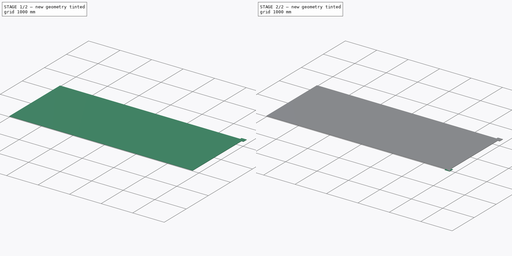
[diagram: build sequence overview — one tinted view per stage of 2, left to right]
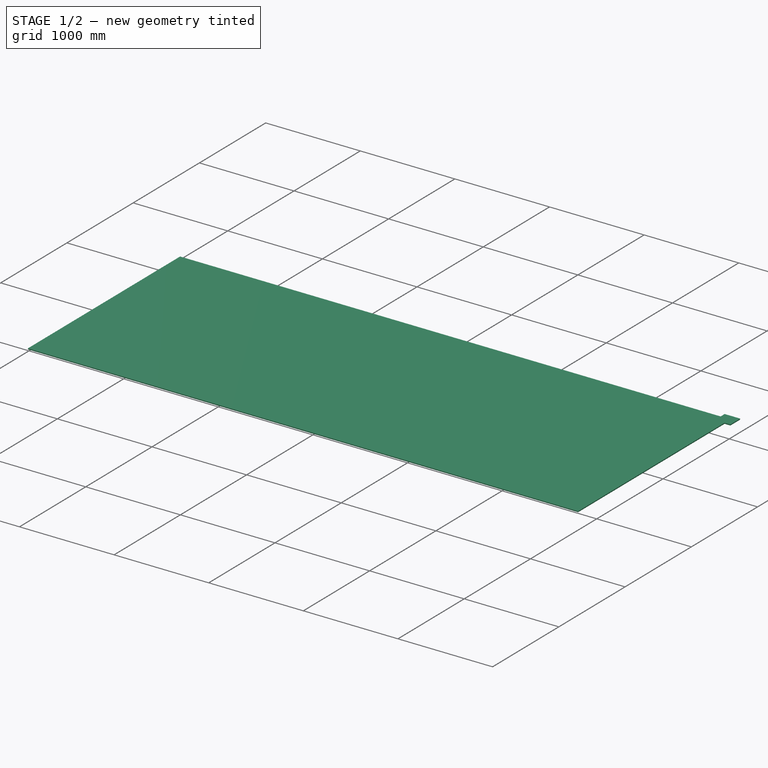
[diagram: stage 1 of 2 — iso view after this stage's code; geometry added in this stage tinted green]
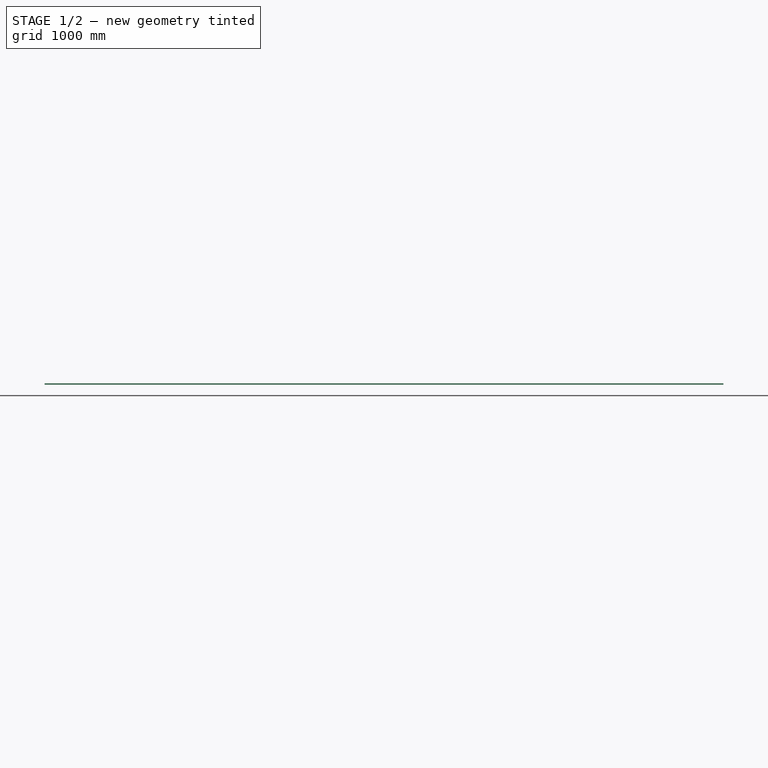
[diagram: stage 1 of 2 — front view after this stage's code; geometry added in this stage tinted green]
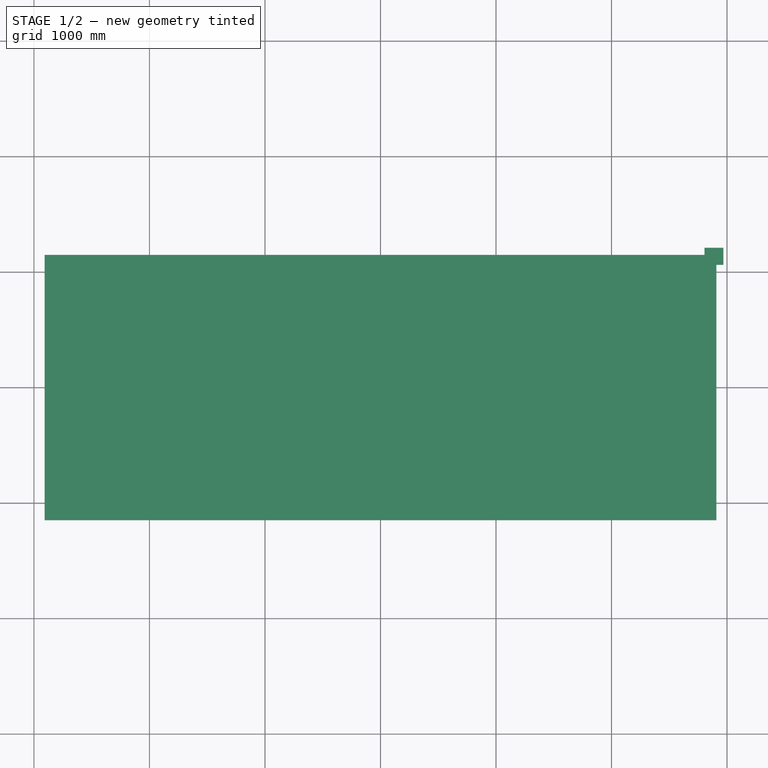
[diagram: stage 1 of 2 — top view after this stage's code; geometry added in this stage tinted green]
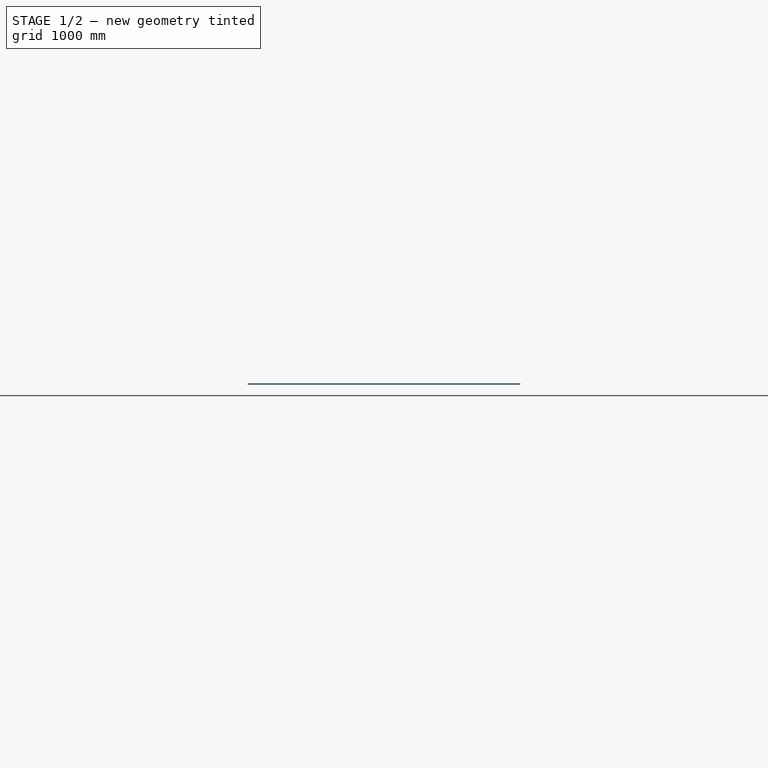
[diagram: stage 1 of 2 — right view after this stage's code; geometry added in this stage tinted green]
FCSTD DOCUMENT  (FreeCAD 0.18R4 (GitTag))
Label: plate-thick_bottom
License: All rights reserved
LicenseURL: http://en.wikipedia.org/wiki/All_rights_reserved
objects: Sketcher::SketchObject×2, PartDesign::Pad×2, PartDesign::Mirrored×1, PartDesign::Fillet×1, PartDesign::Body×1
note: 9 computed .brp shape members not serialized (recipe doc carries the construction recipe); baked Part::Feature solids carry a one-line shape summary decoded from their .brp

FEATURE [Sketcher::SketchObject] Sketch
  MapMode = 5
  Support = -> [XY_Plane]
  sketch-geometry (4):
    g0: LineSegment StartX=-2907.75 StartY=1149 StartZ=0 EndX=2907.75 EndY=1149 EndZ=0
    g1: LineSegment StartX=2907.75 StartY=1149 StartZ=0 EndX=2907.75 EndY=-1149 EndZ=0
    g2: LineSegment StartX=2907.75 StartY=-1149 StartZ=0 EndX=-2907.75 EndY=-1149 EndZ=0
    g3: LineSegment StartX=-2907.75 StartY=-1149 StartZ=0 EndX=-2907.75 EndY=1149 EndZ=0
  constraints (12):
    c: Coincident(g0,g1)
    c: Coincident(g1,g2)
    c: Coincident(g2,g3)
    c: Coincident(g3,g0)
    c: Horizontal(g0)
    c: Horizontal(g2)
    c: Vertical(g1)
    c: Vertical(g3)
    c: DistanceX(g0,g0) = 5815.5
    c: DistanceY(g1,g1) = 2298
    c: DistanceY(g-1,g0) = 1149
    c: DistanceX(g-1,g0) = 2907.75
FEATURE [PartDesign::Pad] Pad
  Length = 10
  Length2 = 100
  Profile = -> Sketch
  Refine = true
  Type = 0
FEATURE [Sketcher::SketchObject] Sketch001
  ExternalGeometry = -> [Pad]
  MapMode = 5
  Placement = pos=(0,0,10) rot=(0,0,1;0rad)
  Support = -> [Pad]
  sketch-geometry (6):
    g0: LineSegment StartX=2907.75 StartY=1062 StartZ=0 EndX=2968.75 EndY=1062 EndZ=0
    g1: LineSegment StartX=2968.75 StartY=1062 StartZ=0 EndX=2968.75 EndY=1210 EndZ=0
    g2: LineSegment StartX=2968.75 StartY=1210 StartZ=0 EndX=2805.25 EndY=1210 EndZ=0
    g3: LineSegment StartX=2805.25 StartY=1210 StartZ=0 EndX=2805.25 EndY=1149 EndZ=0
    g4: LineSegment StartX=2907.75 StartY=1149 StartZ=0 EndX=2805.25 EndY=1149 EndZ=0
    g5: LineSegment StartX=2907.75 StartY=1062 StartZ=0 EndX=2907.75 EndY=1149 EndZ=0
  constraints (17):
    c: Coincident(g0,g1)
    c: Coincident(g1,g2)
    c: Coincident(g2,g3)
    c: Horizontal(g0)
    c: Horizontal(g2)
    c: Vertical(g1)
    c: Vertical(g3)
    c: DistanceX(g-4,g0) = 61
    c: DistanceY(g-4,g2) = 61
    c: Coincident(g5,g4)
    c: Horizontal(g4)
    c: Vertical(g5)
    c: Coincident(g4,g-4)
    c: Coincident(g3,g4)
    c: Coincident(g0,g5)
    c: DistanceY(g0,g4) = 87
    c: DistanceX(g2,g4) = 102.5
FEATURE [PartDesign::Pad] Pad001
  BaseFeature = -> Pad
  Length = 10
  Length2 = 100
  Profile = -> Sketch001
  Refine = true
  Reversed = true
  Type = 0
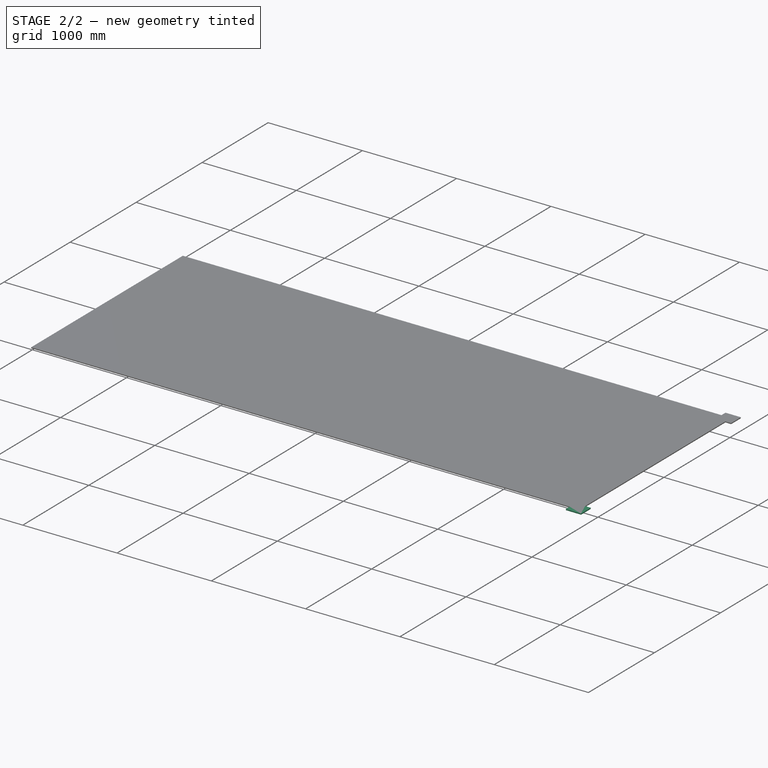
[diagram: stage 2 of 2 — iso view after this stage's code; geometry added in this stage tinted green]
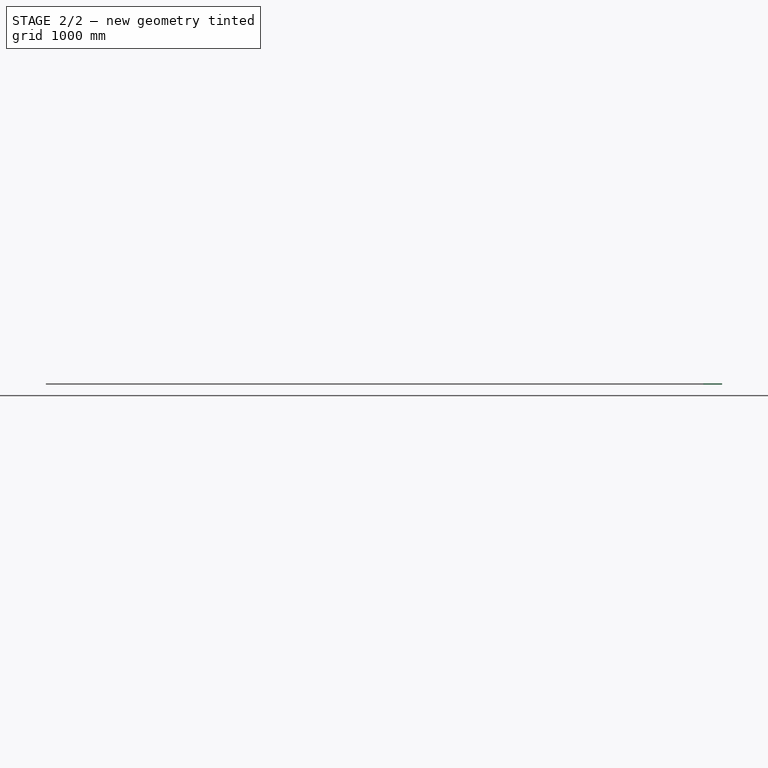
[diagram: stage 2 of 2 — front view after this stage's code; geometry added in this stage tinted green]
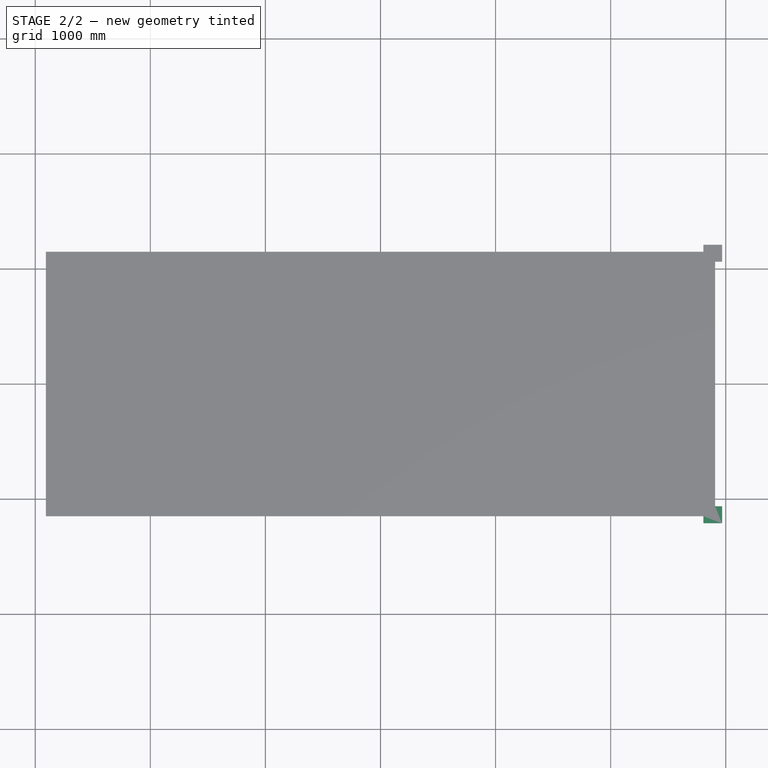
[diagram: stage 2 of 2 — top view after this stage's code; geometry added in this stage tinted green]
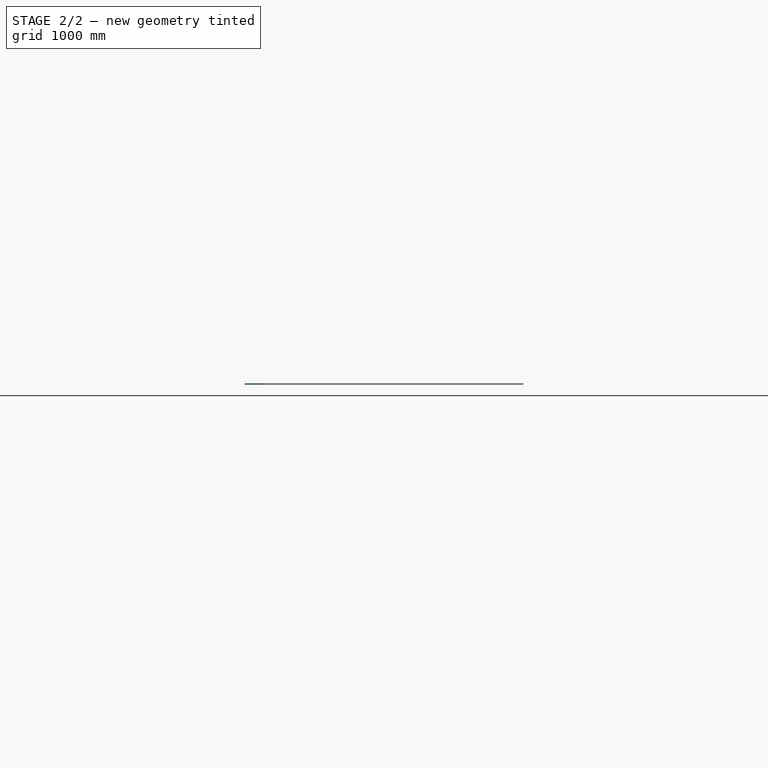
[diagram: stage 2 of 2 — right view after this stage's code; geometry added in this stage tinted green]
FEATURE [PartDesign::Mirrored] Mirrored
  BaseFeature = -> Pad001
  MirrorPlane = -> XZ_Plane
  Originals = -> [Pad001]
  Refine = true
FEATURE [PartDesign::Fillet] Fillet
  Base = -> Mirrored [Edge32,Edge29,Edge15,Edge12,Edge18,Edge24]
  BaseFeature = -> Mirrored
  Radius = 3
FEATURE [PartDesign::Body] Body
  Group = -> [Sketch,Pad,Sketch001,Pad001,Mirrored,Fillet]
  Origin = -> Origin
  Tip = -> Fillet
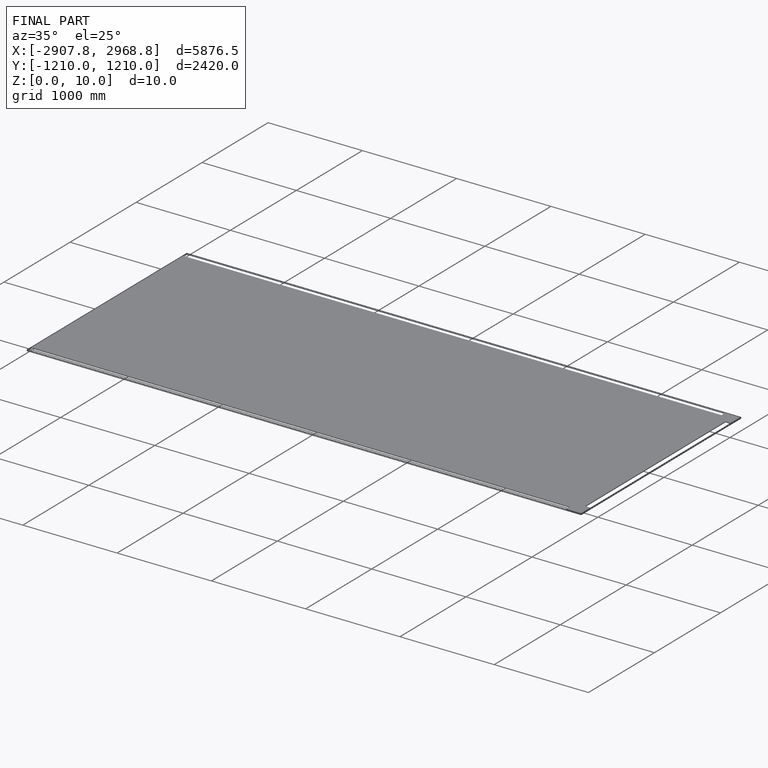
[diagram: finished part — iso view with bounding-box wireframe]
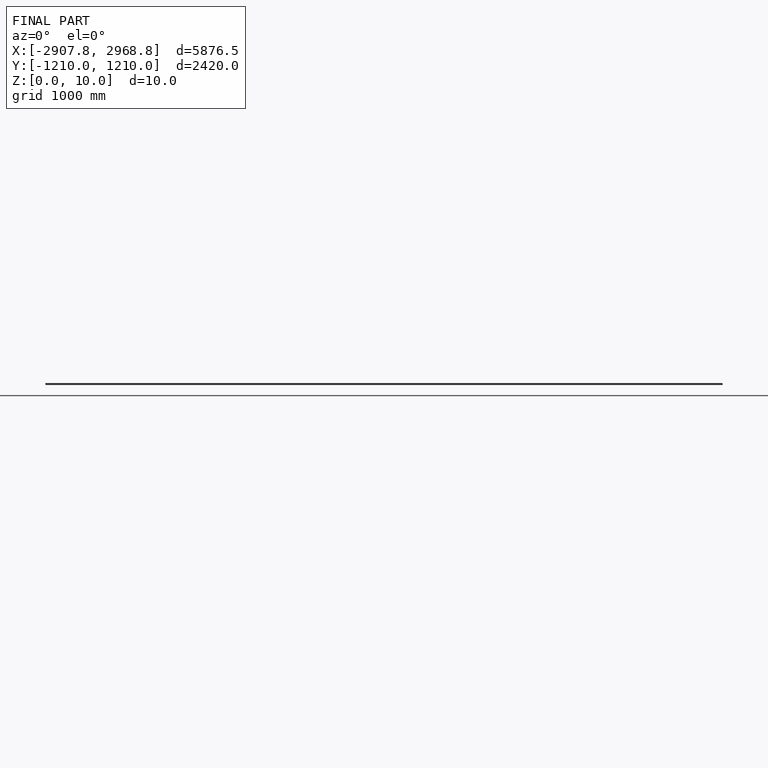
[diagram: finished part — front view with bounding-box wireframe]
